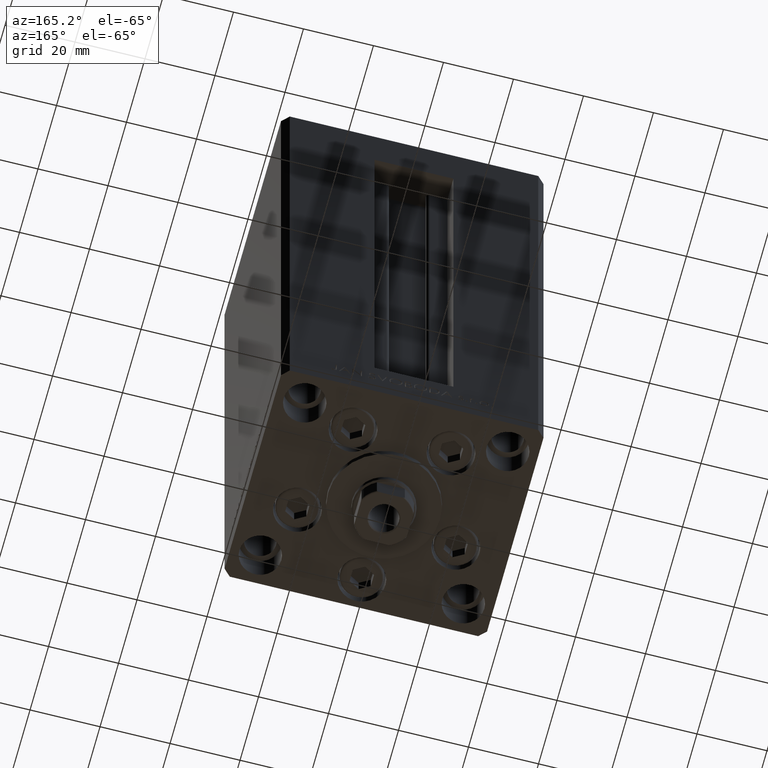
[diagram: clean part render]
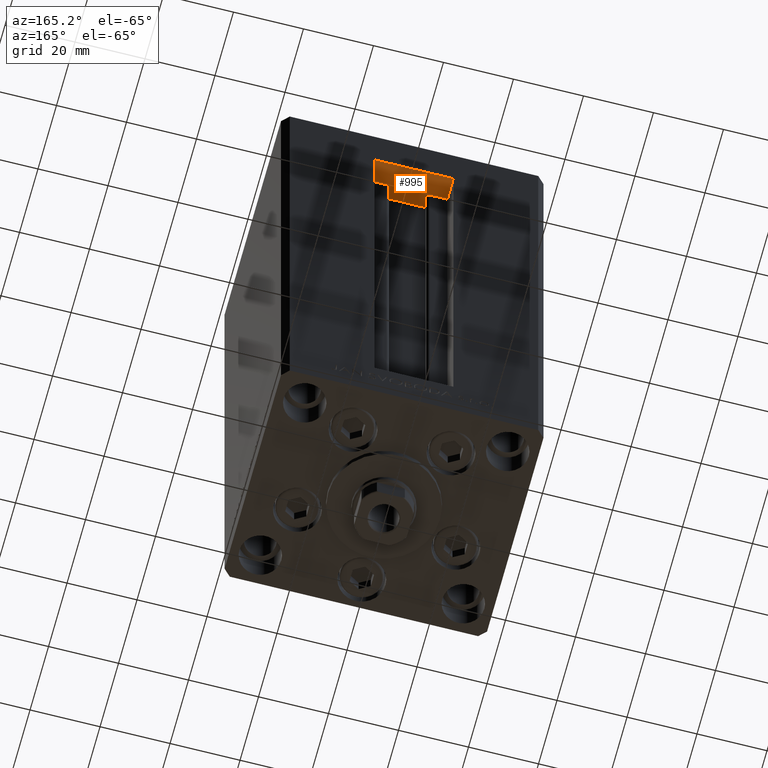
[diagram: same view with one face highlighted and labeled with its STEP entity id]
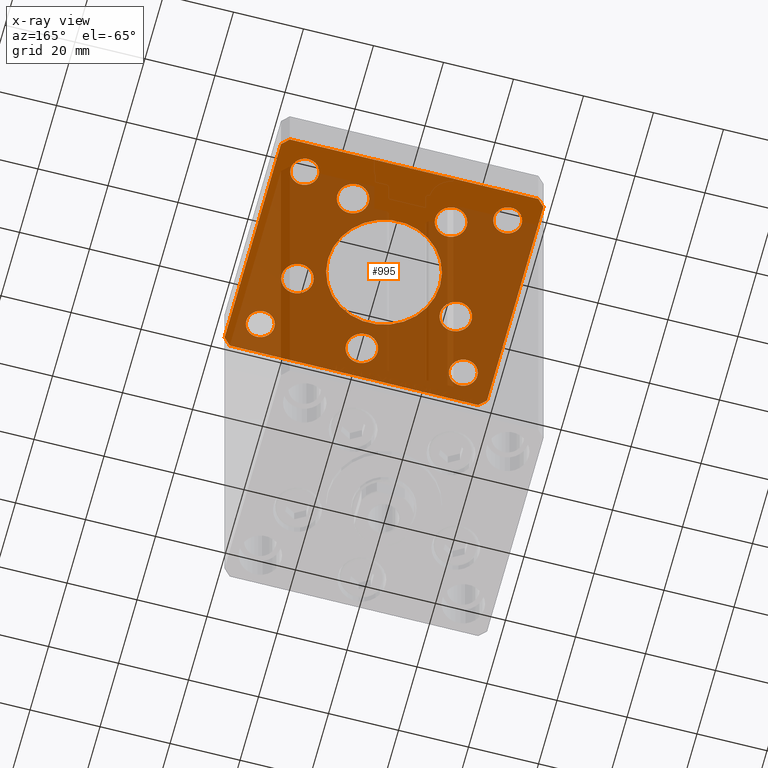
[diagram: x-ray of the same camera — body ghosted, the highlighted face saturated]
A machine part, auxiliary view. The second image highlights one B-rep face of the part: STEP entity #995.
The next image is the same camera in x-ray: the body ghosted, the highlighted face saturated — about 77% of this face is hidden behind the body in this view.
In plain terms, the highlighted planar face has unit normal (0, 0, 1).
Its self-contained STEP definition (entity closure, byte-faithful):
#240 = DIRECTION ( 'NONE',  ( 1.000000000000000000, 9.773090005503140331E-17, 0.000000000000000000 ) ) ;
#418 = CIRCLE ( 'NONE', #33633, 4.000000000000000000 ) ;
#622 = CIRCLE ( 'NONE', #14832, 4.499999999999997335 ) ;
#657 = CIRCLE ( 'NONE', #18722, 3.999999999999996447 ) ;
#758 = EDGE_CURVE ( 'NONE', #45558, #40109, #20015, .T. ) ;
#775 = EDGE_CURVE ( 'NONE', #31464, #15421, #34252, .T. ) ;
#869 = AXIS2_PLACEMENT_3D ( 'NONE', #28767, #29005, #35698 ) ;
#995 = ADVANCED_FACE ( 'NONE', ( #35776, #28105, #17181, #42969, #39247, #2116, #1623, #5828, #20410, #43214, #13225 ), #1867, .F. ) ;
#1294 = CARTESIAN_POINT ( 'NONE',  ( 25.00000000000000711, -23.99999999999999289, -15.00000000000000000 ) ) ;
#1413 = CARTESIAN_POINT ( 'NONE',  ( -18.12741699796952233, -8.000000000000005329, -15.00000000000000000 ) ) ;
#1432 = EDGE_CURVE ( 'NONE', #5691, #46784, #41881, .T. ) ;
#1554 = EDGE_LOOP ( 'NONE', ( #12309, #23795 ) ) ;
#1623 = FACE_BOUND ( 'NONE', #30654, .T. ) ;
#1867 = PLANE ( 'NONE',  #41391 ) ;
#2068 = EDGE_CURVE ( 'NONE', #13959, #39458, #11363, .T. ) ;
#2116 = FACE_BOUND ( 'NONE', #28774, .T. ) ;
#2556 = ORIENTED_EDGE ( 'NONE', *, *, #11849, .F. ) ;
#2608 = DIRECTION ( 'NONE',  ( -1.000000000000000000, 0.000000000000000000, 0.000000000000000000 ) ) ;
#3179 = DIRECTION ( 'NONE',  ( -1.000000000000000000, 0.000000000000000000, 0.000000000000000000 ) ) ;
#3407 = VERTEX_POINT ( 'NONE', #19481 ) ;
#3526 = CARTESIAN_POINT ( 'NONE',  ( 33.00000000000001421, -23.99999999999999289, -15.00000000000000000 ) ) ;
#3632 = CIRCLE ( 'NONE', #47073, 16.00000000000000000 ) ;
#3836 = DIRECTION ( 'NONE',  ( 0.000000000000000000, 0.000000000000000000, 1.000000000000000000 ) ) ;
#3909 = DIRECTION ( 'NONE',  ( 1.000000000000000000, 0.000000000000000000, 0.000000000000000000 ) ) ;
#4244 = CARTESIAN_POINT ( 'NONE',  ( 16.00000000000000000, 0.000000000000000000, -15.00000000000000000 ) ) ;
#4261 = VERTEX_POINT ( 'NONE', #25982 ) ;
#4395 = DIRECTION ( 'NONE',  ( 0.000000000000000000, -0.000000000000000000, -1.000000000000000000 ) ) ;
#4419 = DIRECTION ( 'NONE',  ( -1.000000000000000000, 0.000000000000000000, 0.000000000000000000 ) ) ;
#4798 = DIRECTION ( 'NONE',  ( 1.000000000000000000, 0.000000000000000000, 0.000000000000000000 ) ) ;
#4920 = AXIS2_PLACEMENT_3D ( 'NONE', #47061, #25049, #39160 ) ;
#5133 = CARTESIAN_POINT ( 'NONE',  ( 35.49999999999992184, 32.50000000000000711, -15.00000000000000000 ) ) ;
#5401 = VERTEX_POINT ( 'NONE', #38523 ) ;
#5417 = DIRECTION ( 'NONE',  ( 0.000000000000000000, -0.000000000000000000, -1.000000000000000000 ) ) ;
#5628 = CIRCLE ( 'NONE', #869, 4.499999999999999112 ) ;
#5691 = VERTEX_POINT ( 'NONE', #36288 ) ;
#5828 = FACE_BOUND ( 'NONE', #10986, .T. ) ;
#5829 = EDGE_LOOP ( 'NONE', ( #37121, #18019 ) ) ;
#6057 = CARTESIAN_POINT ( 'NONE',  ( 9.491068579633218150, 19.50000000000000000, -15.00000000000000000 ) ) ;
#6210 = VECTOR ( 'NONE', #10777, 1000.000000000000000 ) ;
#6269 = VERTEX_POINT ( 'NONE', #46014 ) ;
#6407 = EDGE_CURVE ( 'NONE', #41691, #34801, #12105, .T. ) ;
#6491 = ORIENTED_EDGE ( 'NONE', *, *, #12302, .F. ) ;
#6547 = EDGE_CURVE ( 'NONE', #5401, #13785, #47665, .T. ) ;
#6687 = EDGE_CURVE ( 'NONE', #4261, #21528, #8571, .T. ) ;
#6768 = DIRECTION ( 'NONE',  ( 1.000000000000000000, 0.000000000000000000, 0.000000000000000000 ) ) ;
#6796 = ORIENTED_EDGE ( 'NONE', *, *, #18862, .F. ) ;
#6935 = CIRCLE ( 'NONE', #16379, 4.000000000000003553 ) ;
#6943 = DIRECTION ( 'NONE',  ( 1.000000000000000000, 0.000000000000000000, 0.000000000000000000 ) ) ;
#7335 = CARTESIAN_POINT ( 'NONE',  ( 29.00000000000001066, 24.00000000000000711, -15.00000000000000000 ) ) ;
#7338 = CARTESIAN_POINT ( 'NONE',  ( -37.50000000000001421, 30.49999999999998579, -15.00000000000000000 ) ) ;
#7502 = CARTESIAN_POINT ( 'NONE',  ( 22.62741699796951877, -8.000000000000000000, -15.00000000000000000 ) ) ;
#8007 = CIRCLE ( 'NONE', #35694, 3.999999999999996447 ) ;
#8019 = EDGE_CURVE ( 'NONE', #45980, #6269, #30347, .T. ) ;
#8477 = VERTEX_POINT ( 'NONE', #1413 ) ;
#8571 = LINE ( 'NONE', #12761, #23979 ) ;
#8801 = VERTEX_POINT ( 'NONE', #36169 ) ;
#9000 = VECTOR ( 'NONE', #30253, 1000.000000000000000 ) ;
#9089 = DIRECTION ( 'NONE',  ( 0.000000000000000000, -0.000000000000000000, -1.000000000000000000 ) ) ;
#9135 = EDGE_CURVE ( 'NONE', #26345, #5691, #37608, .T. ) ;
#9274 = CARTESIAN_POINT ( 'NONE',  ( 0.000000000000000000, 0.000000000000000000, -15.00000000000000000 ) ) ;
#9337 = DIRECTION ( 'NONE',  ( 0.000000000000000000, -0.000000000000000000, -1.000000000000000000 ) ) ;
#9742 = AXIS2_PLACEMENT_3D ( 'NONE', #17239, #9089, #16750 ) ;
#10507 = LINE ( 'NONE', #37508, #19110 ) ;
#10777 = DIRECTION ( 'NONE',  ( 4.550094363217855288E-16, -1.000000000000000000, 0.000000000000000000 ) ) ;
#10806 = AXIS2_PLACEMENT_3D ( 'NONE', #22553, #11397, #30723 ) ;
#10986 = EDGE_LOOP ( 'NONE', ( #18599, #28602 ) ) ;
#11085 = EDGE_CURVE ( 'NONE', #23758, #23059, #418, .T. ) ;
#11216 = CARTESIAN_POINT ( 'NONE',  ( -22.62741699796951877, -8.000000000000005329, -15.00000000000000000 ) ) ;
#11363 = CIRCLE ( 'NONE', #25584, 4.000000000000003553 ) ;
#11397 = DIRECTION ( 'NONE',  ( 0.000000000000000000, -0.000000000000000000, -1.000000000000000000 ) ) ;
#11598 = VERTEX_POINT ( 'NONE', #25102 ) ;
#11796 = DIRECTION ( 'NONE',  ( 1.000000000000000000, 0.000000000000000000, 0.000000000000000000 ) ) ;
#11849 = EDGE_CURVE ( 'NONE', #35050, #11598, #40636, .T. ) ;
#12105 = CIRCLE ( 'NONE', #35858, 4.000000000000003553 ) ;
#12288 = EDGE_CURVE ( 'NONE', #15421, #31464, #3632, .T. ) ;
#12302 = EDGE_CURVE ( 'NONE', #11598, #4261, #39044, .T. ) ;
#12309 = ORIENTED_EDGE ( 'NONE', *, *, #32332, .F. ) ;
#12761 = CARTESIAN_POINT ( 'NONE',  ( -35.50000000000002842, 32.49999999999999289, -15.00000000000000000 ) ) ;
#12823 = CARTESIAN_POINT ( 'NONE',  ( -4.499999999999999112, -24.00000000000000000, -15.00000000000000000 ) ) ;
#13225 = FACE_BOUND ( 'NONE', #33038, .T. ) ;
#13450 = CARTESIAN_POINT ( 'NONE',  ( 22.62741699796951877, -8.000000000000000000, -15.00000000000000000 ) ) ;
#13473 = DIRECTION ( 'NONE',  ( -0.000000000000000000, 0.000000000000000000, 1.000000000000000000 ) ) ;
#13785 = VERTEX_POINT ( 'NONE', #6057 ) ;
#13959 = VERTEX_POINT ( 'NONE', #41202 ) ;
#14142 = ORIENTED_EDGE ( 'NONE', *, *, #15545, .F. ) ;
#14832 = AXIS2_PLACEMENT_3D ( 'NONE', #11216, #26339, #26097 ) ;
#15288 = VERTEX_POINT ( 'NONE', #23824 ) ;
#15421 = VERTEX_POINT ( 'NONE', #4244 ) ;
#15535 = EDGE_LOOP ( 'NONE', ( #17173, #31690 ) ) ;
#15545 = EDGE_CURVE ( 'NONE', #40109, #45558, #28212, .T. ) ;
#15740 = DIRECTION ( 'NONE',  ( 0.000000000000000000, 0.000000000000000000, 1.000000000000000000 ) ) ;
#15755 = DIRECTION ( 'NONE',  ( -1.000000000000000000, -1.954618001100629052E-16, 0.000000000000000000 ) ) ;
#15767 = EDGE_CURVE ( 'NONE', #39458, #13959, #36129, .T. ) ;
#16189 = CARTESIAN_POINT ( 'NONE',  ( -33.00000000000000711, -23.99999999999999289, -15.00000000000000000 ) ) ;
#16379 = AXIS2_PLACEMENT_3D ( 'NONE', #35783, #32074, #2608 ) ;
#16750 = DIRECTION ( 'NONE',  ( 1.000000000000000000, 0.000000000000000000, 0.000000000000000000 ) ) ;
#16766 = CIRCLE ( 'NONE', #46030, 4.500000000000000888 ) ;
#17121 = VERTEX_POINT ( 'NONE', #16189 ) ;
#17173 = ORIENTED_EDGE ( 'NONE', *, *, #21019, .F. ) ;
#17181 = FACE_BOUND ( 'NONE', #19504, .T. ) ;
#17239 = CARTESIAN_POINT ( 'NONE',  ( 0.000000000000000000, 0.000000000000000000, -15.00000000000000000 ) ) ;
#17694 = CARTESIAN_POINT ( 'NONE',  ( 18.12741699796951877, -8.000000000000000000, -15.00000000000000000 ) ) ;
#17996 = CIRCLE ( 'NONE', #44907, 4.499999999999997335 ) ;
#18019 = ORIENTED_EDGE ( 'NONE', *, *, #775, .F. ) ;
#18207 = DIRECTION ( 'NONE',  ( -1.000000000000000000, 0.000000000000000000, 0.000000000000000000 ) ) ;
#18599 = ORIENTED_EDGE ( 'NONE', *, *, #11085, .T. ) ;
#18642 = ORIENTED_EDGE ( 'NONE', *, *, #758, .F. ) ;
#18722 = AXIS2_PLACEMENT_3D ( 'NONE', #22727, #19010, #4419 ) ;
#18862 = EDGE_CURVE ( 'NONE', #15288, #17121, #657, .T. ) ;
#19010 = DIRECTION ( 'NONE',  ( -0.000000000000000000, -0.000000000000000000, -1.000000000000000000 ) ) ;
#19076 = EDGE_CURVE ( 'NONE', #21528, #8801, #37778, .T. ) ;
#19110 = VECTOR ( 'NONE', #22398, 1000.000000000000114 ) ;
#19298 = VECTOR ( 'NONE', #240, 1000.000000000000000 ) ;
#19481 = CARTESIAN_POINT ( 'NONE',  ( -9.491068579633228808, 19.49999999999999645, -15.00000000000000000 ) ) ;
#19504 = EDGE_LOOP ( 'NONE', ( #14142, #18642 ) ) ;
#19508 = DIRECTION ( 'NONE',  ( 1.000000000000000000, 0.000000000000000000, 0.000000000000000000 ) ) ;
#19800 = VECTOR ( 'NONE', #21904, 1000.000000000000000 ) ;
#20015 = CIRCLE ( 'NONE', #39003, 4.500000000000001776 ) ;
#20296 = ORIENTED_EDGE ( 'NONE', *, *, #31096, .F. ) ;
#20410 = FACE_OUTER_BOUND ( 'NONE', #26984, .T. ) ;
#20798 = ORIENTED_EDGE ( 'NONE', *, *, #9135, .F. ) ;
#21019 = EDGE_CURVE ( 'NONE', #34801, #41691, #6935, .T. ) ;
#21528 = VERTEX_POINT ( 'NONE', #35608 ) ;
#21557 = CARTESIAN_POINT ( 'NONE',  ( 37.49999999999992184, 30.50000000000001066, -15.00000000000000000 ) ) ;
#21904 = DIRECTION ( 'NONE',  ( -1.478780668045802821E-15, 1.000000000000000000, 0.000000000000000000 ) ) ;
#21937 = CARTESIAN_POINT ( 'NONE',  ( -29.00000000000001066, -23.99999999999999289, -15.00000000000000000 ) ) ;
#22398 = DIRECTION ( 'NONE',  ( 0.7071067811865474617, -0.7071067811865474617, 0.000000000000000000 ) ) ;
#22424 = DIRECTION ( 'NONE',  ( 1.000000000000000000, 0.000000000000000000, 0.000000000000000000 ) ) ;
#22472 = DIRECTION ( 'NONE',  ( 0.000000000000000000, -0.000000000000000000, -1.000000000000000000 ) ) ;
#22516 = EDGE_LOOP ( 'NONE', ( #38954, #22621 ) ) ;
#22553 = CARTESIAN_POINT ( 'NONE',  ( 2.939152317953647500E-15, -24.00000000000000000, -15.00000000000000000 ) ) ;
#22621 = ORIENTED_EDGE ( 'NONE', *, *, #35693, .F. ) ;
#22727 = CARTESIAN_POINT ( 'NONE',  ( -29.00000000000001066, -23.99999999999999289, -15.00000000000000000 ) ) ;
#23059 = VERTEX_POINT ( 'NONE', #33043 ) ;
#23430 = DIRECTION ( 'NONE',  ( 1.000000000000000000, 0.000000000000000000, 0.000000000000000000 ) ) ;
#23758 = VERTEX_POINT ( 'NONE', #41115 ) ;
#23795 = ORIENTED_EDGE ( 'NONE', *, *, #8019, .F. ) ;
#23824 = CARTESIAN_POINT ( 'NONE',  ( -25.00000000000001066, -23.99999999999999289, -15.00000000000000000 ) ) ;
#23979 = VECTOR ( 'NONE', #46927, 1000.000000000000000 ) ;
#24814 = AXIS2_PLACEMENT_3D ( 'NONE', #34584, #4395, #26188 ) ;
#25049 = DIRECTION ( 'NONE',  ( 0.000000000000000000, -0.000000000000000000, -1.000000000000000000 ) ) ;
#25102 = CARTESIAN_POINT ( 'NONE',  ( 35.49999999999992184, 32.50000000000000711, -15.00000000000000000 ) ) ;
#25125 = EDGE_CURVE ( 'NONE', #37062, #3407, #48144, .T. ) ;
#25584 = AXIS2_PLACEMENT_3D ( 'NONE', #41704, #3836, #4798 ) ;
#25982 = CARTESIAN_POINT ( 'NONE',  ( -35.50000000000002842, 32.49999999999999289, -15.00000000000000000 ) ) ;
#26097 = DIRECTION ( 'NONE',  ( 1.000000000000000000, 0.000000000000000000, 0.000000000000000000 ) ) ;
#26188 = DIRECTION ( 'NONE',  ( 1.000000000000000000, 0.000000000000000000, 0.000000000000000000 ) ) ;
#26339 = DIRECTION ( 'NONE',  ( 0.000000000000000000, -0.000000000000000000, -1.000000000000000000 ) ) ;
#26345 = VERTEX_POINT ( 'NONE', #40730 ) ;
#26728 = DIRECTION ( 'NONE',  ( 0.000000000000000000, 0.000000000000000000, 1.000000000000000000 ) ) ;
#26984 = EDGE_LOOP ( 'NONE', ( #20296, #47922, #48306, #6491, #2556, #38620, #30920, #20798 ) ) ;
#27152 = CARTESIAN_POINT ( 'NONE',  ( -13.99106857963322703, 19.49999999999999645, -15.00000000000000000 ) ) ;
#27211 = CARTESIAN_POINT ( 'NONE',  ( 33.00000000000001421, 24.00000000000000711, -15.00000000000000000 ) ) ;
#27267 = CARTESIAN_POINT ( 'NONE',  ( -16.00000000000000000, 1.959434878635764737E-15, -15.00000000000000000 ) ) ;
#27326 = VECTOR ( 'NONE', #28764, 999.9999999999998863 ) ;
#28105 = FACE_BOUND ( 'NONE', #22516, .T. ) ;
#28212 = CIRCLE ( 'NONE', #10806, 4.500000000000001776 ) ;
#28540 = ORIENTED_EDGE ( 'NONE', *, *, #2068, .T. ) ;
#28602 = ORIENTED_EDGE ( 'NONE', *, *, #40339, .T. ) ;
#28764 = DIRECTION ( 'NONE',  ( -0.7071067811865482389, 0.7071067811865469066, 0.000000000000000000 ) ) ;
#28767 = CARTESIAN_POINT ( 'NONE',  ( -13.99106857963322703, 19.49999999999999645, -15.00000000000000000 ) ) ;
#28774 = EDGE_LOOP ( 'NONE', ( #35388, #40407 ) ) ;
#28915 = CARTESIAN_POINT ( 'NONE',  ( -18.49106857963322526, 19.49999999999999645, -15.00000000000000000 ) ) ;
#28932 = DIRECTION ( 'NONE',  ( -0.000000000000000000, -0.000000000000000000, -1.000000000000000000 ) ) ;
#28987 = EDGE_CURVE ( 'NONE', #3407, #37062, #5628, .T. ) ;
#29005 = DIRECTION ( 'NONE',  ( 0.000000000000000000, -0.000000000000000000, -1.000000000000000000 ) ) ;
#30253 = DIRECTION ( 'NONE',  ( 0.7071067811865487940, 0.7071067811865463515, 0.000000000000000000 ) ) ;
#30347 = CIRCLE ( 'NONE', #36669, 4.500000000000000888 ) ;
#30583 = AXIS2_PLACEMENT_3D ( 'NONE', #7335, #33081, #22424 ) ;
#30654 = EDGE_LOOP ( 'NONE', ( #37735, #28540 ) ) ;
#30723 = DIRECTION ( 'NONE',  ( 1.000000000000000000, 0.000000000000000000, 0.000000000000000000 ) ) ;
#30920 = ORIENTED_EDGE ( 'NONE', *, *, #1432, .F. ) ;
#31096 = EDGE_CURVE ( 'NONE', #8801, #26345, #10507, .T. ) ;
#31464 = VERTEX_POINT ( 'NONE', #27267 ) ;
#31690 = ORIENTED_EDGE ( 'NONE', *, *, #6407, .F. ) ;
#32069 = VECTOR ( 'NONE', #15755, 1000.000000000000000 ) ;
#32074 = DIRECTION ( 'NONE',  ( -0.000000000000000000, -0.000000000000000000, -1.000000000000000000 ) ) ;
#32312 = DIRECTION ( 'NONE',  ( 1.000000000000000000, 0.000000000000000000, 0.000000000000000000 ) ) ;
#32332 = EDGE_CURVE ( 'NONE', #6269, #45980, #16766, .T. ) ;
#32337 = DIRECTION ( 'NONE',  ( 1.000000000000000000, 0.000000000000000000, 0.000000000000000000 ) ) ;
#32565 = EDGE_LOOP ( 'NONE', ( #39822, #34278 ) ) ;
#32568 = EDGE_CURVE ( 'NONE', #13785, #5401, #39734, .T. ) ;
#32609 = DIRECTION ( 'NONE',  ( 1.000000000000000000, 0.000000000000000000, 0.000000000000000000 ) ) ;
#32822 = CARTESIAN_POINT ( 'NONE',  ( 37.50000000000001421, -30.50000000000000711, -15.00000000000000000 ) ) ;
#32855 = CARTESIAN_POINT ( 'NONE',  ( 37.49999999999992184, 30.50000000000001066, -15.00000000000000000 ) ) ;
#32883 = CARTESIAN_POINT ( 'NONE',  ( 29.00000000000001066, -23.99999999999999289, -15.00000000000000000 ) ) ;
#33038 = EDGE_LOOP ( 'NONE', ( #6796, #43274 ) ) ;
#33043 = CARTESIAN_POINT ( 'NONE',  ( -33.00000000000000711, 24.00000000000000711, -15.00000000000000000 ) ) ;
#33081 = DIRECTION ( 'NONE',  ( 0.000000000000000000, 0.000000000000000000, 1.000000000000000000 ) ) ;
#33633 = AXIS2_PLACEMENT_3D ( 'NONE', #42011, #15740, #3909 ) ;
#34252 = CIRCLE ( 'NONE', #9742, 16.00000000000000000 ) ;
#34278 = ORIENTED_EDGE ( 'NONE', *, *, #32568, .F. ) ;
#34421 = EDGE_CURVE ( 'NONE', #8477, #47449, #622, .T. ) ;
#34584 = CARTESIAN_POINT ( 'NONE',  ( 13.99106857963322348, 19.50000000000000000, -15.00000000000000000 ) ) ;
#34635 = CARTESIAN_POINT ( 'NONE',  ( -22.62741699796951877, -8.000000000000005329, -15.00000000000000000 ) ) ;
#34801 = VERTEX_POINT ( 'NONE', #3526 ) ;
#34836 = CARTESIAN_POINT ( 'NONE',  ( 37.50000000000001421, -30.50000000000000711, -15.00000000000000000 ) ) ;
#34862 = CARTESIAN_POINT ( 'NONE',  ( -35.49999999999998579, -32.50000000000001421, -15.00000000000000000 ) ) ;
#35050 = VERTEX_POINT ( 'NONE', #32855 ) ;
#35388 = ORIENTED_EDGE ( 'NONE', *, *, #28987, .F. ) ;
#35608 = CARTESIAN_POINT ( 'NONE',  ( -37.50000000000001421, 30.49999999999998579, -15.00000000000000000 ) ) ;
#35693 = EDGE_CURVE ( 'NONE', #47449, #8477, #17996, .T. ) ;
#35694 = AXIS2_PLACEMENT_3D ( 'NONE', #21937, #37047, #18207 ) ;
#35698 = DIRECTION ( 'NONE',  ( 1.000000000000000000, 0.000000000000000000, 0.000000000000000000 ) ) ;
#35776 = FACE_BOUND ( 'NONE', #5829, .T. ) ;
#35783 = CARTESIAN_POINT ( 'NONE',  ( 29.00000000000001066, -23.99999999999999289, -15.00000000000000000 ) ) ;
#35858 = AXIS2_PLACEMENT_3D ( 'NONE', #32883, #28932, #3179 ) ;
#36129 = CIRCLE ( 'NONE', #30583, 4.000000000000003553 ) ;
#36169 = CARTESIAN_POINT ( 'NONE',  ( -37.49999999999998579, -30.50000000000001421, -15.00000000000000000 ) ) ;
#36288 = CARTESIAN_POINT ( 'NONE',  ( 35.50000000000000711, -32.50000000000000711, -15.00000000000000000 ) ) ;
#36669 = AXIS2_PLACEMENT_3D ( 'NONE', #13450, #44166, #6768 ) ;
#37047 = DIRECTION ( 'NONE',  ( -0.000000000000000000, -0.000000000000000000, -1.000000000000000000 ) ) ;
#37062 = VERTEX_POINT ( 'NONE', #28915 ) ;
#37121 = ORIENTED_EDGE ( 'NONE', *, *, #12288, .F. ) ;
#37508 = CARTESIAN_POINT ( 'NONE',  ( -37.49999999999998579, -30.50000000000001421, -15.00000000000000000 ) ) ;
#37608 = LINE ( 'NONE', #34862, #19298 ) ;
#37697 = DIRECTION ( 'NONE',  ( 0.000000000000000000, -0.000000000000000000, -1.000000000000000000 ) ) ;
#37735 = ORIENTED_EDGE ( 'NONE', *, *, #15767, .T. ) ;
#37752 = CARTESIAN_POINT ( 'NONE',  ( 4.500000000000003553, -24.00000000000000000, -15.00000000000000000 ) ) ;
#37755 = LINE ( 'NONE', #32822, #19800 ) ;
#37778 = LINE ( 'NONE', #7338, #6210 ) ;
#38523 = CARTESIAN_POINT ( 'NONE',  ( 18.49106857963322881, 19.50000000000000000, -15.00000000000000000 ) ) ;
#38543 = CARTESIAN_POINT ( 'NONE',  ( 0.000000000000000000, 0.000000000000000000, -15.00000000000000000 ) ) ;
#38620 = ORIENTED_EDGE ( 'NONE', *, *, #46172, .F. ) ;
#38954 = ORIENTED_EDGE ( 'NONE', *, *, #34421, .F. ) ;
#39003 = AXIS2_PLACEMENT_3D ( 'NONE', #47197, #9337, #32609 ) ;
#39044 = LINE ( 'NONE', #5133, #32069 ) ;
#39160 = DIRECTION ( 'NONE',  ( 1.000000000000000000, 0.000000000000000000, 0.000000000000000000 ) ) ;
#39247 = FACE_BOUND ( 'NONE', #32565, .T. ) ;
#39458 = VERTEX_POINT ( 'NONE', #27211 ) ;
#39734 = CIRCLE ( 'NONE', #4920, 4.500000000000005329 ) ;
#39822 = ORIENTED_EDGE ( 'NONE', *, *, #6547, .F. ) ;
#40109 = VERTEX_POINT ( 'NONE', #37752 ) ;
#40339 = EDGE_CURVE ( 'NONE', #23059, #23758, #43384, .T. ) ;
#40407 = ORIENTED_EDGE ( 'NONE', *, *, #25125, .F. ) ;
#40636 = LINE ( 'NONE', #21557, #27326 ) ;
#40730 = CARTESIAN_POINT ( 'NONE',  ( -35.49999999999998579, -32.50000000000001421, -15.00000000000000000 ) ) ;
#41115 = CARTESIAN_POINT ( 'NONE',  ( -25.00000000000001066, 24.00000000000000711, -15.00000000000000000 ) ) ;
#41202 = CARTESIAN_POINT ( 'NONE',  ( 25.00000000000000711, 24.00000000000000711, -15.00000000000000000 ) ) ;
#41391 = AXIS2_PLACEMENT_3D ( 'NONE', #9274, #13473, #32312 ) ;
#41691 = VERTEX_POINT ( 'NONE', #1294 ) ;
#41704 = CARTESIAN_POINT ( 'NONE',  ( 29.00000000000001066, 24.00000000000000711, -15.00000000000000000 ) ) ;
#41881 = LINE ( 'NONE', #45572, #9000 ) ;
#42011 = CARTESIAN_POINT ( 'NONE',  ( -29.00000000000001066, 24.00000000000000711, -15.00000000000000000 ) ) ;
#42515 = DIRECTION ( 'NONE',  ( 0.000000000000000000, -0.000000000000000000, -1.000000000000000000 ) ) ;
#42969 = FACE_BOUND ( 'NONE', #1554, .T. ) ;
#43214 = FACE_BOUND ( 'NONE', #15535, .T. ) ;
#43274 = ORIENTED_EDGE ( 'NONE', *, *, #47941, .F. ) ;
#43384 = CIRCLE ( 'NONE', #47306, 4.000000000000000000 ) ;
#43453 = AXIS2_PLACEMENT_3D ( 'NONE', #27152, #22472, #23430 ) ;
#44166 = DIRECTION ( 'NONE',  ( 0.000000000000000000, -0.000000000000000000, -1.000000000000000000 ) ) ;
#44306 = CARTESIAN_POINT ( 'NONE',  ( -27.12741699796951877, -8.000000000000005329, -15.00000000000000000 ) ) ;
#44907 = AXIS2_PLACEMENT_3D ( 'NONE', #34635, #5417, #19508 ) ;
#45301 = CARTESIAN_POINT ( 'NONE',  ( -29.00000000000001066, 24.00000000000000711, -15.00000000000000000 ) ) ;
#45558 = VERTEX_POINT ( 'NONE', #12823 ) ;
#45572 = CARTESIAN_POINT ( 'NONE',  ( 35.50000000000000711, -32.50000000000000711, -15.00000000000000000 ) ) ;
#45980 = VERTEX_POINT ( 'NONE', #17694 ) ;
#46014 = CARTESIAN_POINT ( 'NONE',  ( 27.12741699796952233, -8.000000000000000000, -15.00000000000000000 ) ) ;
#46030 = AXIS2_PLACEMENT_3D ( 'NONE', #7502, #37697, #32337 ) ;
#46172 = EDGE_CURVE ( 'NONE', #46784, #35050, #37755, .T. ) ;
#46784 = VERTEX_POINT ( 'NONE', #34836 ) ;
#46927 = DIRECTION ( 'NONE',  ( -0.7071067811865426878, -0.7071067811865524577, 0.000000000000000000 ) ) ;
#47061 = CARTESIAN_POINT ( 'NONE',  ( 13.99106857963322348, 19.50000000000000000, -15.00000000000000000 ) ) ;
#47073 = AXIS2_PLACEMENT_3D ( 'NONE', #38543, #42515, #11796 ) ;
#47197 = CARTESIAN_POINT ( 'NONE',  ( 2.939152317953647500E-15, -24.00000000000000000, -15.00000000000000000 ) ) ;
#47306 = AXIS2_PLACEMENT_3D ( 'NONE', #45301, #26728, #6943 ) ;
#47449 = VERTEX_POINT ( 'NONE', #44306 ) ;
#47665 = CIRCLE ( 'NONE', #24814, 4.500000000000005329 ) ;
#47922 = ORIENTED_EDGE ( 'NONE', *, *, #19076, .F. ) ;
#47941 = EDGE_CURVE ( 'NONE', #17121, #15288, #8007, .T. ) ;
#48144 = CIRCLE ( 'NONE', #43453, 4.499999999999999112 ) ;
#48306 = ORIENTED_EDGE ( 'NONE', *, *, #6687, .F. ) ;